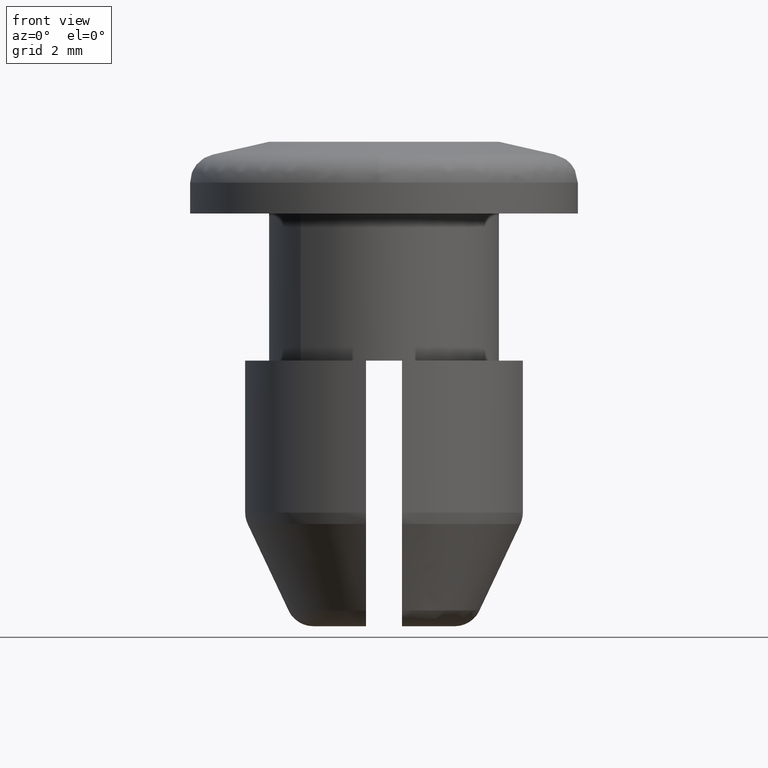
[diagram: clean part render]
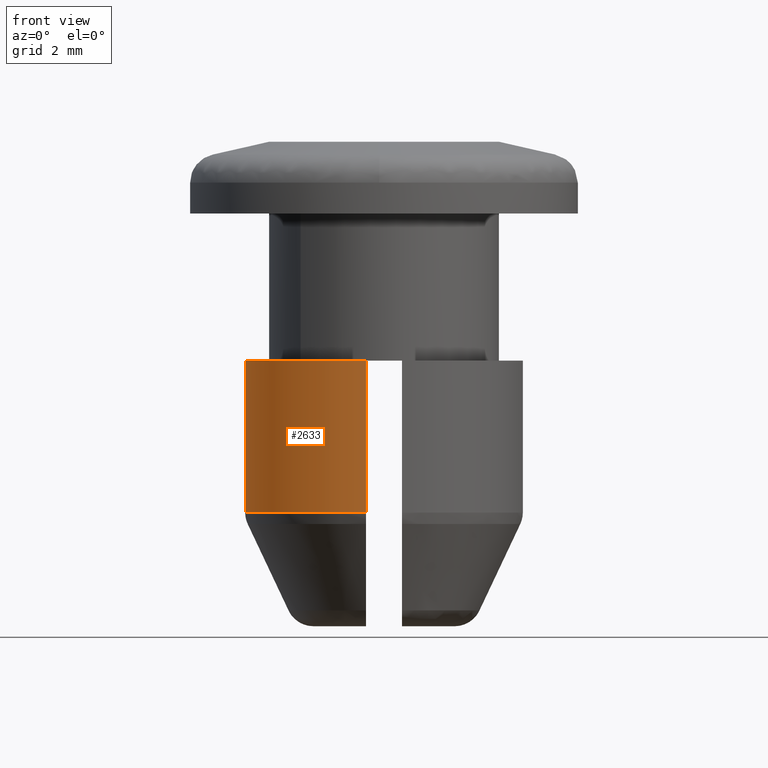
[diagram: same view with one face highlighted and labeled with its STEP entity id]
A machine part, front view. The second image highlights one B-rep face of the part: STEP entity #2633.
In plain terms, the highlighted face is a freeform B-spline surface patch.
Its self-contained STEP definition (entity closure, byte-faithful):
#2409=CARTESIAN_POINT('',(-3.867815921162775,-0.500000000000011,-10.333900000000000));
#2410=VERTEX_POINT('',#2409);
#2423=CARTESIAN_POINT('',(-0.500000000000011,-3.867815921163055,-10.333900000000000));
#2424=VERTEX_POINT('',#2423);
#2438=CARTESIAN_POINT('',(-0.500000000000011,-3.867815921163055,-10.333900000000000));
#2439=CARTESIAN_POINT('',(-3.482289609849436,-3.482289609849468,-10.333899999999998));
#2440=CARTESIAN_POINT('',(-3.867815921162742,-0.500000000000006,-10.333900000000000));
#2448=(BOUNDED_CURVE()B_SPLINE_CURVE(2,(#2438,#2439,#2440),.UNSPECIFIED.,.F.,.U.)CURVE()GEOMETRIC_REPRESENTATION_ITEM()QUASI_UNIFORM_CURVE()RATIONAL_B_SPLINE_CURVE((1.0,0.791926219699676,1.0))REPRESENTATION_ITEM(''));
#2449=EDGE_CURVE('',#2424,#2410,#2448,.T.);
#2589=CARTESIAN_POINT('',(-3.884353047075145,-0.349000581200132,-5.994152499999897));
#2590=CARTESIAN_POINT('',(-3.884353047075145,-0.349000581200132,-10.442393687499999));
#2591=CARTESIAN_POINT('',(-3.586371146354930,-3.665519138434470,-5.994152499999896));
#2592=CARTESIAN_POINT('',(-3.586371146354930,-3.665519138434470,-10.442393687500003));
#2593=CARTESIAN_POINT('',(-0.264138964030760,-3.891044924911656,-5.994152499999897));
#2594=CARTESIAN_POINT('',(-0.264138964030760,-3.891044924911656,-10.442393687499999));
#2602=(BOUNDED_SURFACE()B_SPLINE_SURFACE(1,2,((#2589,#2591,#2593),(#2590,#2592,#2594)),.UNSPECIFIED.,.F.,.F.,.U.)B_SPLINE_SURFACE_WITH_KNOTS((2,2),(3,3),(0.0,4.448241187500106),(0.0,5.753764371168077),.UNSPECIFIED.)GEOMETRIC_REPRESENTATION_ITEM()RATIONAL_B_SPLINE_SURFACE(((1.0,0.758018902936983,0.993470649676024),(1.0,0.758018902936983,0.993470649676024)))REPRESENTATION_ITEM('')SURFACE());
#2603=CARTESIAN_POINT('',(-3.867815921162740,-0.500000000000011,-6.099999999999901));
#2604=VERTEX_POINT('',#2603);
#2605=CARTESIAN_POINT('',(-3.867815921162775,-0.500000000000011,-10.333900000000000));
#2606=CARTESIAN_POINT('',(-3.867815921162740,-0.500000000000011,-6.099999999999901));
#2607=QUASI_UNIFORM_CURVE('',1,(#2605,#2606),.UNSPECIFIED.,.F.,.U.);
#2608=EDGE_CURVE('',#2410,#2604,#2607,.T.);
#2609=ORIENTED_EDGE('',*,*,#2608,.F.);
#2610=ORIENTED_EDGE('',*,*,#2449,.F.);
#2611=CARTESIAN_POINT('',(-0.500000000000011,-3.867815921162740,-6.099999999999901));
#2612=VERTEX_POINT('',#2611);
#2613=CARTESIAN_POINT('',(-0.500000000000011,-3.867815921162740,-6.099999999999901));
#2614=CARTESIAN_POINT('',(-0.500000000000011,-3.867815921163055,-10.333900000000000));
#2615=QUASI_UNIFORM_CURVE('',1,(#2613,#2614),.UNSPECIFIED.,.F.,.U.);
#2616=EDGE_CURVE('',#2612,#2424,#2615,.T.);
#2617=ORIENTED_EDGE('',*,*,#2616,.F.);
#2618=CARTESIAN_POINT('',(-0.500000000000011,-3.867815921162742,-6.099999999999901));
#2619=CARTESIAN_POINT('',(-3.482289609849434,-3.482289609849437,-6.099999999999900));
#2620=CARTESIAN_POINT('',(-3.867815921162741,-0.500000000000013,-6.099999999999901));
#2628=(BOUNDED_CURVE()B_SPLINE_CURVE(2,(#2618,#2619,#2620),.UNSPECIFIED.,.F.,.U.)CURVE()GEOMETRIC_REPRESENTATION_ITEM()QUASI_UNIFORM_CURVE()RATIONAL_B_SPLINE_CURVE((1.0,0.791926219699679,1.0))REPRESENTATION_ITEM(''));
#2629=EDGE_CURVE('',#2612,#2604,#2628,.T.);
#2630=ORIENTED_EDGE('',*,*,#2629,.T.);
#2631=EDGE_LOOP('',(#2609,#2610,#2617,#2630));
#2632=FACE_OUTER_BOUND('',#2631,.T.);
#2633=ADVANCED_FACE('',(#2632),#2602,.T.);